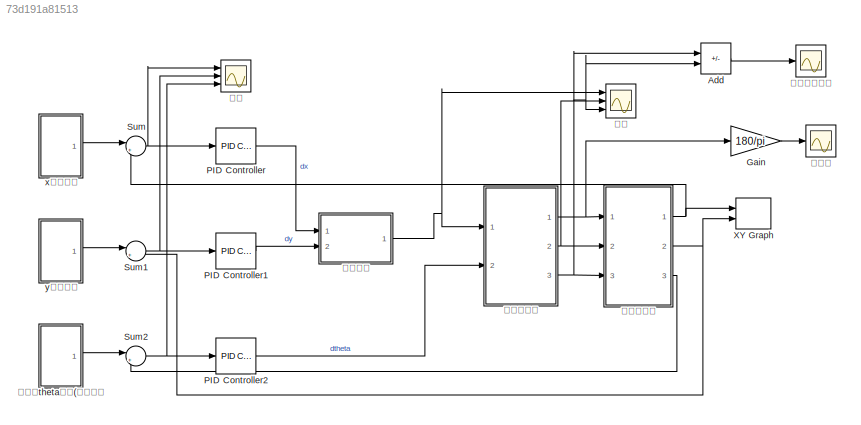
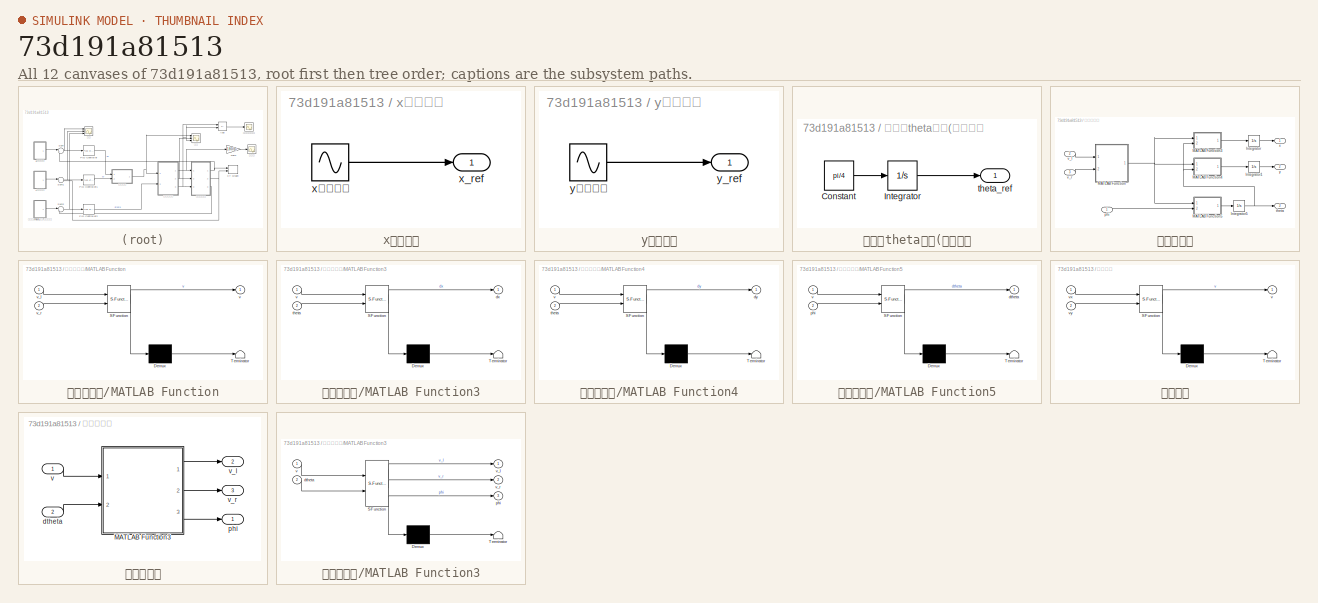
[diagram: thumbnail index - all 12 canvases of the model, root first then tree order]
MODEL slx_73d191a81513
KIND model
CONFIG AbsTol = auto
CONFIG EnableMultiTasking = off
CONFIG FixedStep = auto
CONFIG MaxStep = auto
CONFIG MinStep = auto
CONFIG RelTol = 1e-3
CONFIG SampleTimeConstraint = Unconstrained
CONFIG SolverName = VariableStepAuto
CONFIG StartTime = 0
CONFIG StopTime = 15
BLOCK [Sum] Add
  IconShape = rectangular
  Inputs = +-
  Ports = [2, 1]
BLOCK [Gain] Gain
  Gain = 180/pi
BLOCK [Reference] PID Controller  REF=slpidlib/PID Controller
  Ports = [1, 1]
  SourceBlock = slpidlib/PID Controller
  SourceProductBaseCode = SL
  SourceType = PID 1dof
BLOCK [Reference] PID Controller1  REF=slpidlib/PID Controller
  Ports = [1, 1]
  SourceBlock = slpidlib/PID Controller
  SourceProductBaseCode = SL
  SourceType = PID 1dof
BLOCK [Reference] PID Controller2  REF=slpidlib/PID Controller
  Ports = [1, 1]
  SourceBlock = slpidlib/PID Controller
  SourceProductBaseCode = SL
  SourceType = PID 1dof
BLOCK [Sum] Sum
  Inputs = |+-
  Ports = [2, 1]
BLOCK [Sum] Sum1
  Inputs = |+-
  Ports = [2, 1]
BLOCK [Sum] Sum2
  Inputs = |+-
  Ports = [2, 1]
BLOCK [Record] XY Graph
  CompatibilityTag = XY
  FileSettingsInternal = {"entries":[{"content":{"excelSettings":{"content":{},"type":"Streamout.ExcelSettings"}},"type":"Streamout.FileSettingStorage","uuid":"fc5dee4a-28b3-4ad2-9bcc-4b5cd185ba70"}],"packageUris":["http://schema.mathworks.com/mf0/streamout_blocks/R2020a"],"version":"1.0"}
  Layout = [1 1]
  Ports = [2]
  SignalsInternal = {"entries":[{"content":{"signals":[{"content":{"blockPath":["test/XY Graph"],"channel":[],"dimensions":[1],"domain":"test/XY Graph","lineColor":"#a2142f","plots":[1],"port":1,"sid":[""],"signalID":3670,"signalName":"正向运动学:1"},"type":"RecordBlkView.Signal","uuid":"a53176e7-da72-4e25-9eef-323f38d3bce5"},{"content":{"blockPath":["test/XY Graph"],"channel":[],"dimensions":[1],"domain":"test/XY Graph",...<+347ch>
  VisualizationBindings = {"xyplotplugin":{"info":[{"series":[{"bindingParametersList":[{"parameter":"X-Axis","signalID":3670,"signalName":"正向运动学:1"},{"parameter":"Y-Axis","signalID":3674,"signalName":"正向运动学:2"}],"seriesID":62762}],"subplotID":1}]}}
BLOCK [SubSystem] x参考轨迹
  Ports = [0, 1]
  RequestExecContextInheritance = off
BLOCK [Outport] x参考轨迹/x_ref
BLOCK [Sin] x参考轨迹/x参考轨迹
  Amplitude = 4
  Frequency = pi/4
  Ports = [0, 1]
  SampleTime = 0
BLOCK [SubSystem] y参考轨迹
  Ports = [0, 1]
  RequestExecContextInheritance = off
BLOCK [Outport] y参考轨迹/y_ref
BLOCK [Sin] y参考轨迹/y参考轨迹
  Amplitude = 4
  Bias = 4
  Frequency = pi/4
  Phase = -pi/2
  Ports = [0, 1]
  SampleTime = 0
BLOCK [SubSystem] 姿态角theta参考(弧度制）
  Ports = [0, 1]
  RequestExecContextInheritance = off
BLOCK [Constant] 姿态角theta参考(弧度制）/Constant
  Value = pi/4
BLOCK [Integrator] 姿态角theta参考(弧度制）/Integrator
  Ports = [1, 1]
BLOCK [Outport] 姿态角theta参考(弧度制）/theta_ref
BLOCK [Scope] 左右轮速度差
  Floating = off
  NumInputPorts = 1
  Ports = [1]
  ScopeSpecificationString = Simulink.scopes.TimeScopeBlockCfg('CurrentConfiguration', extmgr.ConfigurationSet(extmgr.Configuration('Core','General UI',true),extmgr.Configuration('Core','Source UI',true),extmgr.Configuration('Sources','WiredSimulink',true,'DataLoggingVariableName','ScopeData4'),extmgr.Configuration('Visuals','Time Domain',true,'SerializedDisplays',{struct('MinYLimReal','-0.16029','MaxYLimReal','0.01581','YLab...<+1416ch>
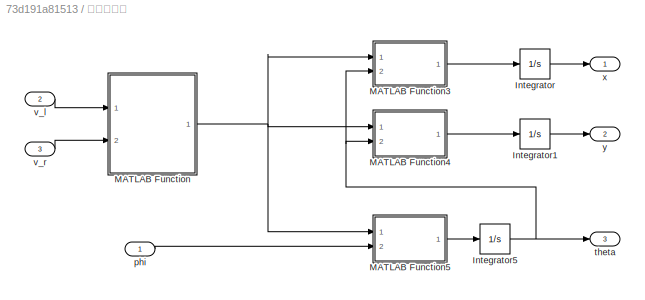
BLOCK [SubSystem] 正向运动学
  Ports = [3, 3]
  RequestExecContextInheritance = off
BLOCK [Integrator] 正向运动学/Integrator
  InitialCondition = 0.0001
  Ports = [1, 1]
BLOCK [Integrator] 正向运动学/Integrator1
  Ports = [1, 1]
BLOCK [Integrator] 正向运动学/Integrator5
  Ports = [1, 1]
BLOCK [SubSystem] 正向运动学/MATLAB Function
  ErrorFcn = Stateflow.Translate.translate
  PermitHierarchicalResolution = ExplicitOnly
  Ports = [2, 1]
  RequestExecContextInheritance = off
  SFBlockType = MATLAB Function
  TreatAsAtomicUnit = on
BLOCK [Demux] 正向运动学/MATLAB Function/ Demux 
  Outputs = 1
  Ports = [1, 1]
BLOCK [S-Function] 正向运动学/MATLAB Function/ SFunction 
  EnableBusSupport = on
  FunctionName = sf_sfun
  PortCounts = [2 2]
  Ports = [2, 2]
  SFcnIsStateOwnerBlock = off
  SFunctionDeploymentMode = off
  Tag = Stateflow S-Function 11
BLOCK [Terminator] 正向运动学/MATLAB Function/ Terminator 
BLOCK [Outport] 正向运动学/MATLAB Function/v
BLOCK [Inport] 正向运动学/MATLAB Function/v_l
BLOCK [Inport] 正向运动学/MATLAB Function/v_r
  Port = 2
BLOCK [SubSystem] 正向运动学/MATLAB Function3
  ErrorFcn = Stateflow.Translate.translate
  PermitHierarchicalResolution = ExplicitOnly
  Ports = [2, 1]
  RequestExecContextInheritance = off
  SFBlockType = MATLAB Function
  TreatAsAtomicUnit = on
BLOCK [Demux] 正向运动学/MATLAB Function3/ Demux 
  Outputs = 1
  Ports = [1, 1]
BLOCK [S-Function] 正向运动学/MATLAB Function3/ SFunction 
  EnableBusSupport = on
  FunctionName = sf_sfun
  PortCounts = [2 2]
  Ports = [2, 2]
  SFcnIsStateOwnerBlock = off
  SFunctionDeploymentMode = off
  Tag = Stateflow S-Function 4
BLOCK [Terminator] 正向运动学/MATLAB Function3/ Terminator 
BLOCK [Outport] 正向运动学/MATLAB Function3/dx
BLOCK [Inport] 正向运动学/MATLAB Function3/theta
  Port = 2
BLOCK [Inport] 正向运动学/MATLAB Function3/v
BLOCK [SubSystem] 正向运动学/MATLAB Function4
  ErrorFcn = Stateflow.Translate.translate
  PermitHierarchicalResolution = ExplicitOnly
  Ports = [2, 1]
  RequestExecContextInheritance = off
  SFBlockType = MATLAB Function
  TreatAsAtomicUnit = on
BLOCK [Demux] 正向运动学/MATLAB Function4/ Demux 
  Outputs = 1
  Ports = [1, 1]
BLOCK [S-Function] 正向运动学/MATLAB Function4/ SFunction 
  EnableBusSupport = on
  FunctionName = sf_sfun
  PortCounts = [2 2]
  Ports = [2, 2]
  SFcnIsStateOwnerBlock = off
  SFunctionDeploymentMode = off
  Tag = Stateflow S-Function 5
BLOCK [Terminator] 正向运动学/MATLAB Function4/ Terminator 
BLOCK [Outport] 正向运动学/MATLAB Function4/dy
BLOCK [Inport] 正向运动学/MATLAB Function4/theta
  Port = 2
BLOCK [Inport] 正向运动学/MATLAB Function4/v
BLOCK [SubSystem] 正向运动学/MATLAB Function5
  ErrorFcn = Stateflow.Translate.translate
  PermitHierarchicalResolution = ExplicitOnly
  Ports = [2, 1]
  RequestExecContextInheritance = off
  SFBlockType = MATLAB Function
  TreatAsAtomicUnit = on
BLOCK [Demux] 正向运动学/MATLAB Function5/ Demux 
  Outputs = 1
  Ports = [1, 1]
BLOCK [S-Function] 正向运动学/MATLAB Function5/ SFunction 
  EnableBusSupport = on
  FunctionName = sf_sfun
  PortCounts = [2 2]
  Ports = [2, 2]
  SFcnIsStateOwnerBlock = off
  SFunctionDeploymentMode = off
  Tag = Stateflow S-Function 6
BLOCK [Terminator] 正向运动学/MATLAB Function5/ Terminator 
BLOCK [Outport] 正向运动学/MATLAB Function5/dtheta
BLOCK [Inport] 正向运动学/MATLAB Function5/phi
  Port = 2
BLOCK [Inport] 正向运动学/MATLAB Function5/v
BLOCK [Inport] 正向运动学/phi
BLOCK [Outport] 正向运动学/theta
  Port = 3
BLOCK [Inport] 正向运动学/v_l
  Port = 2
BLOCK [Inport] 正向运动学/v_r
  Port = 3
BLOCK [Outport] 正向运动学/x
BLOCK [Outport] 正向运动学/y
  Port = 2
BLOCK [SubSystem] 求线速度
  ErrorFcn = Stateflow.Translate.translate
  PermitHierarchicalResolution = ExplicitOnly
  Ports = [2, 1]
  RequestExecContextInheritance = off
  SFBlockType = MATLAB Function
  TreatAsAtomicUnit = on
BLOCK [Demux] 求线速度/ Demux 
  Outputs = 1
  Ports = [1, 1]
BLOCK [S-Function] 求线速度/ SFunction 
  EnableBusSupport = on
  FunctionName = sf_sfun
  PortCounts = [2 2]
  Ports = [2, 2]
  SFcnIsStateOwnerBlock = off
  SFunctionDeploymentMode = off
  Tag = Stateflow S-Function 1
BLOCK [Terminator] 求线速度/ Terminator 
BLOCK [Outport] 求线速度/v
BLOCK [Inport] 求线速度/vx
BLOCK [Inport] 求线速度/vy
  Port = 2
BLOCK [Scope] 误差
  Floating = off
  NumInputPorts = 3
  Ports = [3]
  ScopeSpecificationString = Simulink.scopes.TimeScopeBlockCfg('CurrentConfiguration', extmgr.ConfigurationSet(extmgr.Configuration('Core','General UI',true),extmgr.Configuration('Core','Source UI',true),extmgr.Configuration('Sources','WiredSimulink',true,'DataLoggingVariableName','ScopeData2'),extmgr.Configuration('Visuals','Time Domain',true,'SerializedDisplays',{struct('MinYLimReal','-0.30458','MaxYLimReal','0.32764','YLab...<+2686ch>
BLOCK [Scope] 转向角
  Floating = off
  NumInputPorts = 1
  Ports = [1]
  ScopeSpecificationString = Simulink.scopes.TimeScopeBlockCfg('CurrentConfiguration', extmgr.ConfigurationSet(extmgr.Configuration('Core','General UI',true),extmgr.Configuration('Core','Source UI',true),extmgr.Configuration('Sources','WiredSimulink',true),extmgr.Configuration('Visuals','Time Domain',true,'SerializedDisplays',{struct('MinYLimReal','0.19711','MaxYLimReal','4.73445','YLabelReal','','MinYLimMag','0.19711','MaxYL...<+1322ch>
BLOCK [SubSystem] 逆向运动学
  Ports = [2, 3]
  RequestExecContextInheritance = off
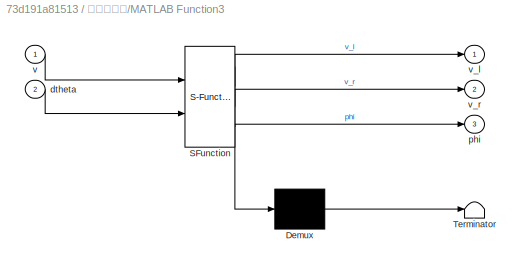
BLOCK [SubSystem] 逆向运动学/MATLAB Function3
  ErrorFcn = Stateflow.Translate.translate
  PermitHierarchicalResolution = ExplicitOnly
  Ports = [2, 3]
  RequestExecContextInheritance = off
  SFBlockType = MATLAB Function
  TreatAsAtomicUnit = on
BLOCK [Demux] 逆向运动学/MATLAB Function3/ Demux 
  Outputs = 1
  Ports = [1, 1]
BLOCK [S-Function] 逆向运动学/MATLAB Function3/ SFunction 
  EnableBusSupport = on
  FunctionName = sf_sfun
  PortCounts = [2 4]
  Ports = [2, 4]
  SFcnIsStateOwnerBlock = off
  SFunctionDeploymentMode = off
  Tag = Stateflow S-Function 14
BLOCK [Terminator] 逆向运动学/MATLAB Function3/ Terminator 
BLOCK [Inport] 逆向运动学/MATLAB Function3/dtheta
  Port = 2
BLOCK [Outport] 逆向运动学/MATLAB Function3/phi
  Port = 3
BLOCK [Inport] 逆向运动学/MATLAB Function3/v
BLOCK [Outport] 逆向运动学/MATLAB Function3/v_l
BLOCK [Outport] 逆向运动学/MATLAB Function3/v_r
  Port = 2
BLOCK [Inport] 逆向运动学/dtheta
  Port = 2
BLOCK [Outport] 逆向运动学/phi
BLOCK [Inport] 逆向运动学/v
BLOCK [Outport] 逆向运动学/v_l
  Port = 2
BLOCK [Outport] 逆向运动学/v_r
  Port = 3
BLOCK [Scope] 速度
  Floating = off
  NumInputPorts = 3
  Ports = [3]
  ScopeSpecificationString = Simulink.scopes.TimeScopeBlockCfg('CurrentConfiguration', extmgr.ConfigurationSet(extmgr.Configuration('Core','General UI',true),extmgr.Configuration('Core','Source UI',true),extmgr.Configuration('Sources','WiredSimulink',true,'DataLoggingVariableName','ScopeData3'),extmgr.Configuration('Visuals','Time Domain',true,'SerializedDisplays',{struct('MinYLimReal','2.81379','MaxYLimReal','3.37761','YLabe...<+1616ch>
LINE Add:1 -> 左右轮速度差:1
LINE Gain:1 -> 转向角:1
LINE PID Controller1:1 -> 求线速度:2
LINE PID Controller2:1 -> 逆向运动学:2
LINE PID Controller:1 -> 求线速度:1
NET Sum1:1 -> PID Controller1:1, 误差:2
NET Sum2:1 -> PID Controller2:1, 误差:3
NET Sum:1 -> PID Controller:1, 误差:1
LINE x参考轨迹/x参考轨迹:1 -> x参考轨迹/x_ref:1
LINE x参考轨迹:1 -> Sum:1
LINE y参考轨迹/y参考轨迹:1 -> y参考轨迹/y_ref:1
LINE y参考轨迹:1 -> Sum1:1
LINE 姿态角theta参考(弧度制）/Constant:1 -> 姿态角theta参考(弧度制）/Integrator:1
LINE 姿态角theta参考(弧度制）/Integrator:1 -> 姿态角theta参考(弧度制）/theta_ref:1
LINE 姿态角theta参考(弧度制）:1 -> Sum2:1
LINE 正向运动学/Integrator1:1 -> 正向运动学/y:1
NET 正向运动学/Integrator5:1 -> 正向运动学/MATLAB Function3:2, 正向运动学/MATLAB Function4:2, 正向运动学/theta:1
LINE 正向运动学/Integrator:1 -> 正向运动学/x:1
LINE 正向运动学/MATLAB Function3:1 -> 正向运动学/Integrator:1
LINE 正向运动学/MATLAB Function4:1 -> 正向运动学/Integrator1:1
LINE 正向运动学/MATLAB Function5:1 -> 正向运动学/Integrator5:1
NET 正向运动学/MATLAB Function:1 -> 正向运动学/MATLAB Function3:1, 正向运动学/MATLAB Function4:1, 正向运动学/MATLAB Function5:1
LINE 正向运动学/phi:1 -> 正向运动学/MATLAB Function5:2
LINE 正向运动学/v_l:1 -> 正向运动学/MATLAB Function:1
LINE 正向运动学/v_r:1 -> 正向运动学/MATLAB Function:2
NET 正向运动学:1 -> Sum:2, XY Graph:1
NET 正向运动学:2 -> Sum1:2, XY Graph:2
LINE 正向运动学:3 -> Sum2:2
NET 求线速度:1 -> 逆向运动学:1, 速度:1
LINE 逆向运动学/MATLAB Function3:1 -> 逆向运动学/v_l:1
LINE 逆向运动学/MATLAB Function3:2 -> 逆向运动学/v_r:1
LINE 逆向运动学/MATLAB Function3:3 -> 逆向运动学/phi:1
LINE 逆向运动学/dtheta:1 -> 逆向运动学/MATLAB Function3:2
LINE 逆向运动学/v:1 -> 逆向运动学/MATLAB Function3:1
NET 逆向运动学:1 -> Gain:1, 正向运动学:1
NET 逆向运动学:2 -> Add:1, 正向运动学:2, 速度:2
NET 逆向运动学:3 -> Add:2, 正向运动学:3, 速度:3
note: NET lines group one-source signal fan-out (src -> all destinations, sorted); 1:1 wires keep LINE
CHART 求线速度 states=1 transitions=1
  STATE_LABEL 'eML_blk_kernel()'
  STATE_LABEL 'SCRIPT:\nfunction v = fcn(vx,vy)\n\nv = sqrt(vx^2+vy^2);\n'
CHART 正向运动学/MATLAB Function3 states=1 transitions=1
  STATE_LABEL 'eML_blk_kernel()'
  STATE_LABEL 'SCRIPT:\nfunction dx = fcn(v,theta)\ndx=v*cos(theta);\n'
CHART 正向运动学/MATLAB Function4 states=1 transitions=1
  STATE_LABEL 'eML_blk_kernel()'
  STATE_LABEL 'SCRIPT:\nfunction dy = fcn(v,theta)\ndy=v*sin(theta);\n'
CHART 正向运动学/MATLAB Function5 states=1 transitions=1
  STATE_LABEL 'eML_blk_kernel()'
  STATE_LABEL 'SCRIPT:\nfunction dtheta = fcn(v,phi)\nL=0.28;\ndtheta=v*tan(phi)/L;\n'
CHART 正向运动学/MATLAB Function states=1 transitions=1
  STATE_LABEL 'eML_blk_kernel()'
  STATE_LABEL 'SCRIPT:\nfunction v = fcn(v_l,v_r)\nv=(v_l+v_r)/2;'
CHART 逆向运动学/MATLAB Function3 states=1 transitions=1
  STATE_LABEL 'eML_blk_kernel()'
  STATE_LABEL 'SCRIPT:\nfunction [v_l,v_r,phi] = fcn(v,dtheta)\nW=0.18;%宽度\nL=0.28;\nR=v/dtheta;   %L/phi;\n\nv_l = (v/R)*(R-W/2);\nv_r = (v/R)*(R+W/2);\n\nphi_l=atan(L/(R-W/2));\nphi_r=atan(L/(R+W/2));\nphi=(phi_l+phi_r)/2;\nif phi>pi/2\n    phi=pi/2;\nend'
CHART  states=0 transitions=0
CHART  states=0 transitions=0
CHART  states=0 transitions=0
CHART  states=0 transitions=0
CHART  states=0 transitions=0
CHART  states=0 transitions=0
